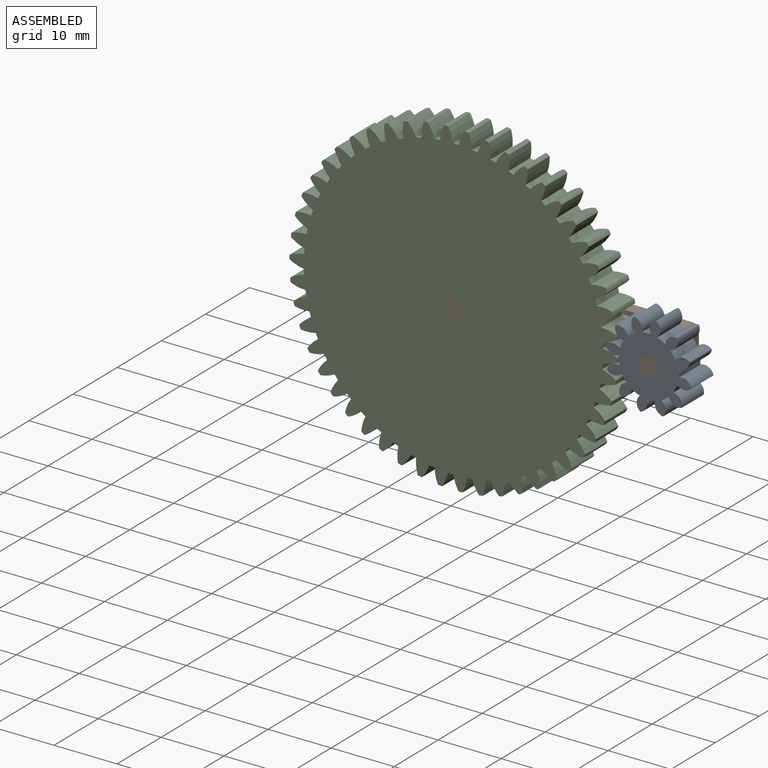
[diagram: assembled view]
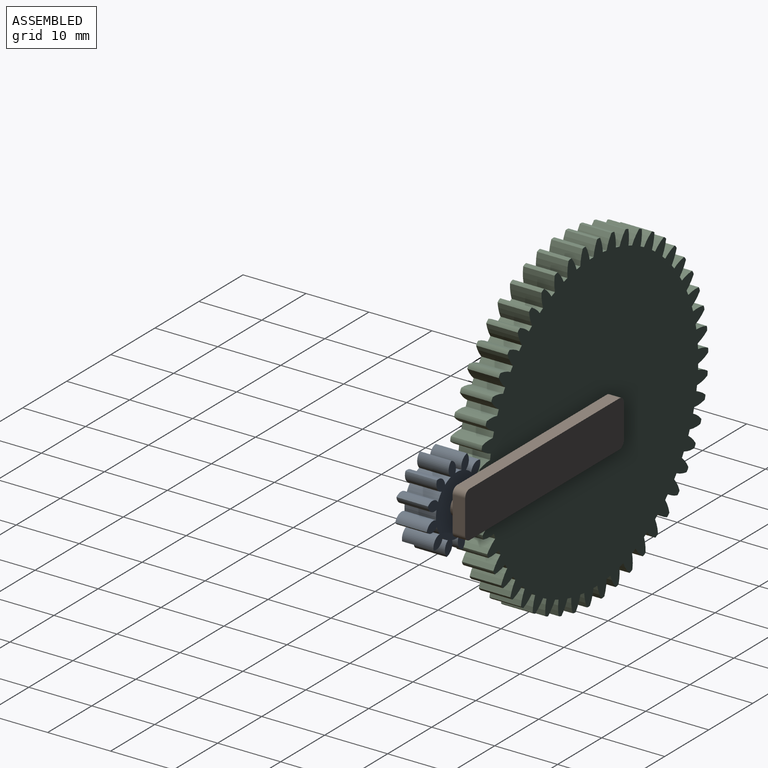
[diagram: assembled view, second angle]
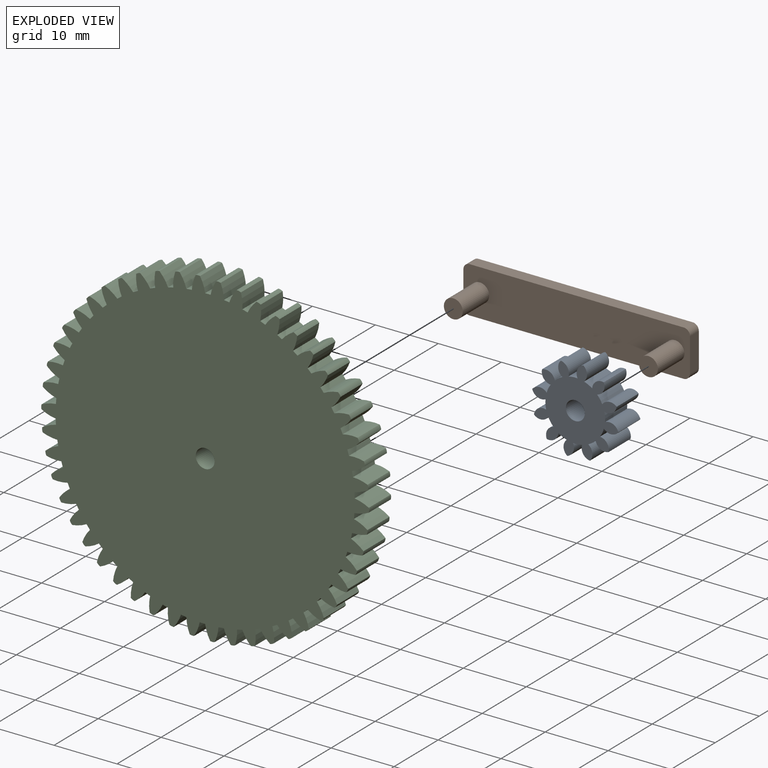
[diagram: exploded view]
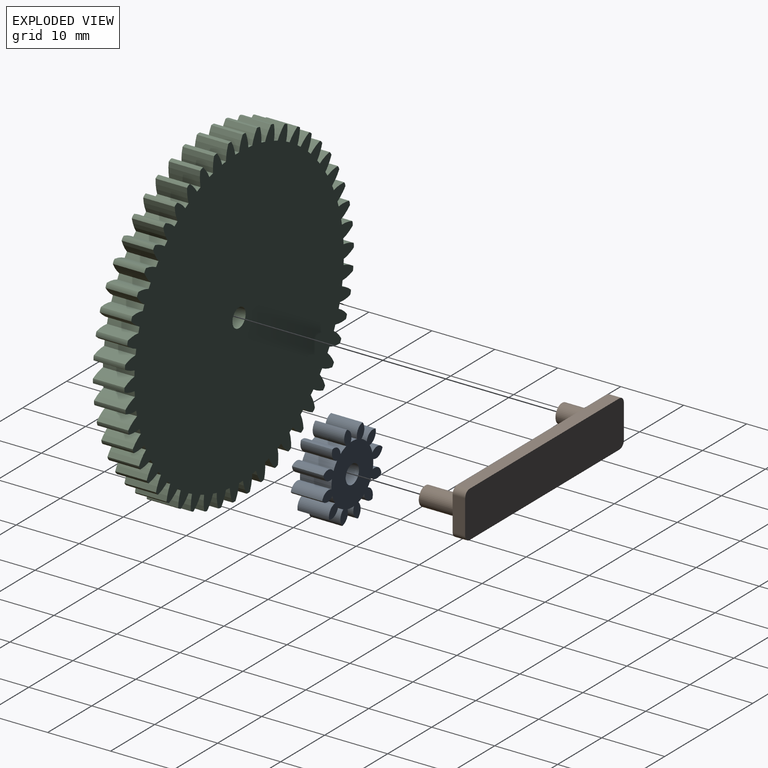
[diagram: exploded view, second angle]
ASSEMBLY  parts=3 mates=2
PART A: 39 faces, bbox 13.8x5x13.8 mm
  f0: cylinder r=4.75mm len=5mm, axis (0,1,0), area 7.3mm2, adj f1,f36,f37,f38
  f1: cylinder r=1.5mm len=5mm, axis (0,1,0), area 13.1mm2, adj f0,f2,f37,f38
  f2: cylinder r=1.5mm len=5mm, axis (0,1,0), area 13.1mm2, adj f1,f3,f37,f38
  f3: cylinder r=4.75mm len=5mm, axis (0,1,0), area 7.3mm2, adj f2,f4,f37,f38
  f4: cylinder r=1.5mm len=5mm, axis (0,1,0), area 13.1mm2, adj f3,f5,f37,f38
  f5: cylinder r=1.5mm len=5mm, axis (0,1,0), area 13.1mm2, adj f4,f6,f37,f38
  f6: cylinder r=4.75mm len=5mm, axis (0,1,0), area 7.3mm2, adj f5,f7,f37,f38
  f7: cylinder r=1.5mm len=5mm, axis (0,1,0), area 13.1mm2, adj f6,f8,f37,f38
  f8: cylinder r=1.5mm len=5mm, axis (0,1,0), area 13.1mm2, adj f7,f9,f37,f38
  f9: cylinder r=4.75mm len=5mm, axis (0,1,0), area 7.3mm2, adj f8,f10,f37,f38
  f10: cylinder r=1.5mm len=5mm, axis (0,1,0), area 13.1mm2, adj f9,f11,f37,f38
  f11: cylinder r=1.5mm len=5mm, axis (0,1,0), area 13.1mm2, adj f10,f12,f37,f38
  f12: cylinder r=4.75mm len=5mm, axis (0,1,0), area 7.3mm2, adj f11,f13,f37,f38
  f13: cylinder r=1.5mm len=5mm, axis (0,1,0), area 13.1mm2, adj f12,f14,f37,f38
  f14: cylinder r=1.5mm len=5mm, axis (0,1,0), area 13.1mm2, adj f13,f15,f37,f38
  f15: cylinder r=4.75mm len=5mm, axis (0,1,0), area 7.3mm2, adj f14,f16,f37,f38
  f16: cylinder r=1.5mm len=5mm, axis (0,1,0), area 13.1mm2, adj f15,f17,f37,f38
  f17: cylinder r=1.5mm len=5mm, axis (0,1,0), area 13.1mm2, adj f16,f18,f37,f38
  f18: cylinder r=4.75mm len=5mm, axis (0,1,0), area 7.3mm2, adj f17,f19,f37,f38
  f19: cylinder r=1.5mm len=5mm, axis (0,1,0), area 13.1mm2, adj f18,f20,f37,f38
  f20: cylinder r=1.5mm len=5mm, axis (0,1,0), area 13.1mm2, adj f19,f21,f37,f38
  f21: cylinder r=4.75mm len=5mm, axis (0,1,0), area 7.3mm2, adj f20,f22,f37,f38
  f22: cylinder r=1.5mm len=5mm, axis (0,1,0), area 13.1mm2, adj f21,f23,f37,f38
  f23: cylinder r=1.5mm len=5mm, axis (0,1,0), area 13.1mm2, adj f22,f24,f37,f38
  f24: cylinder r=4.75mm len=5mm, axis (0,1,0), area 7.3mm2, adj f23,f25,f37,f38
  f25: cylinder r=1.5mm len=5mm, axis (0,1,0), area 13.1mm2, adj f24,f26,f37,f38
  f26: cylinder r=1.5mm len=5mm, axis (0,1,0), area 13.1mm2, adj f25,f27,f37,f38
  f27: cylinder r=4.75mm len=5mm, axis (0,1,0), area 7.3mm2, adj f26,f28,f37,f38
  f28: cylinder r=1.5mm len=5mm, axis (0,1,0), area 13.1mm2, adj f27,f29,f37,f38
  f29: cylinder r=1.5mm len=5mm, axis (0,1,0), area 13.1mm2, adj f28,f30,f37,f38
  f30: cylinder r=4.75mm len=5mm, axis (0,1,0), area 7.3mm2, adj f29,f31,f37,f38
  f31: cylinder r=1.5mm len=5mm, axis (0,1,0), area 13.1mm2, adj f30,f32,f37,f38
  f32: cylinder r=1.5mm len=5mm, axis (0,1,0), area 13.1mm2, adj f31,f33,f37,f38
  f33: cylinder r=4.75mm len=5mm, axis (0,1,0), area 7.3mm2, adj f32,f34,f37,f38
  f34: cylinder r=1.5mm len=5mm, axis (0,1,0), area 13.1mm2, adj f33,f36,f37,f38
  f35: cylinder r=1.5mm len=5mm, axis (0,1,0), area 47.1mm2, adj f37,f38
  f36: cylinder r=1.5mm len=5mm, axis (0,1,0), area 13.1mm2, adj f0,f34,f37,f38
  f37: plane 13.8x13.8mm, normal (0,-1,0), area 97.9mm2, adj f0,f1,f2,f3,f4,f5,f6,f7
  f38: plane 13.8x13.8mm, normal (0,1,0), area 97.9mm2, adj f0,f1,f2,f3,f4,f5,f6,f7
PART B: 14 faces, bbox 36x8x7.4 mm
  f0: plane 5.36x2mm, normal (1,0,0), area 10.7mm2, adj f4,f5,f10,f13
  f1: plane 34x2mm, normal (0,0,1), area 68mm2, adj f4,f5,f10,f11
  f2: plane 5.36x2mm, normal (-1,0,0), area 10.7mm2, adj f4,f5,f11,f12
  f3: plane 34x2mm, normal (0,0,-1), area 68mm2, adj f4,f5,f12,f13
  f4: plane 36x7.36mm, normal (0,-1,0), area 250.1mm2, adj f0,f1,f2,f3,f6,f8,f10,f11
  f5: plane 36x7.36mm, normal (0,1,0), area 264.2mm2, adj f0,f1,f2,f3,f10,f11,f12,f13
  f6: cylinder r=1.5mm len=6mm, axis (0,1,0), area 56.5mm2, adj f4,f7
  f7: plane 3x3mm, normal (0,-1,0), area 7.1mm2, adj f6
  f8: cylinder r=1.5mm len=6mm, axis (0,1,0), area 56.5mm2, adj f4,f9
  f9: plane 3x3mm, normal (0,-1,0), area 7.1mm2, adj f8
  f10: cylinder r=1mm len=2mm, axis (0,-1,0), area 3.1mm2, adj f0,f1,f4,f5
  f11: cylinder r=1mm len=2mm, axis (0,1,0), area 3.1mm2, adj f1,f2,f4,f5
  f12: cylinder r=1mm len=2mm, axis (0,-1,0), area 3.1mm2, adj f2,f3,f4,f5
  f13: cylinder r=1mm len=2mm, axis (0,1,0), area 3.1mm2, adj f0,f3,f4,f5
PART C: 203 faces, bbox 52.1x5x52.1 mm
  f0: cylinder r=6.25mm len=5mm, axis (0,1,0), area 12mm2, adj f1,f199,f201,f202
  f1: cylinder r=23.75mm len=5mm, axis (0,1,0), area 4.3mm2, adj f0,f2,f201,f202
  f2: cylinder r=6.25mm len=5mm, axis (0,1,0), area 12mm2, adj f1,f3,f201,f202
  f3: cylinder r=1.37mm len=5mm, axis (0,1,0), area 3.6mm2, adj f2,f4,f201,f202
  f4: cylinder r=6.25mm len=5mm, axis (0,1,0), area 12mm2, adj f3,f5,f201,f202
  f5: cylinder r=23.75mm len=5mm, axis (0,1,0), area 4.3mm2, adj f4,f6,f201,f202
  f6: cylinder r=6.25mm len=5mm, axis (0,1,0), area 12mm2, adj f5,f7,f201,f202
  f7: cylinder r=1.37mm len=5mm, axis (0,1,0), area 3.6mm2, adj f6,f8,f201,f202
  f8: cylinder r=6.25mm len=5mm, axis (0,1,0), area 12mm2, adj f7,f9,f201,f202
  f9: cylinder r=23.75mm len=5mm, axis (0,1,0), area 4.3mm2, adj f8,f10,f201,f202
  f10: cylinder r=6.25mm len=5mm, axis (0,1,0), area 12mm2, adj f9,f11,f201,f202
  f11: cylinder r=1.37mm len=5mm, axis (0,1,0), area 3.6mm2, adj f10,f12,f201,f202
  f12: cylinder r=6.25mm len=5mm, axis (0,1,0), area 12mm2, adj f11,f13,f201,f202
  f13: cylinder r=23.75mm len=5mm, axis (0,1,0), area 4.3mm2, adj f12,f14,f201,f202
  f14: cylinder r=6.25mm len=5mm, axis (0,1,0), area 12mm2, adj f13,f15,f201,f202
  f15: cylinder r=1.37mm len=5mm, axis (0,1,0), area 3.6mm2, adj f14,f16,f201,f202
  f16: cylinder r=6.25mm len=5mm, axis (0,1,0), area 12mm2, adj f15,f17,f201,f202
  f17: cylinder r=23.75mm len=5mm, axis (0,1,0), area 4.3mm2, adj f16,f18,f201,f202
  f18: cylinder r=6.25mm len=5mm, axis (0,1,0), area 12mm2, adj f17,f19,f201,f202
  f19: cylinder r=1.37mm len=5mm, axis (0,1,0), area 3.6mm2, adj f18,f20,f201,f202
  f20: cylinder r=6.25mm len=5mm, axis (0,1,0), area 12mm2, adj f19,f21,f201,f202
  f21: cylinder r=23.75mm len=5mm, axis (0,1,0), area 4.3mm2, adj f20,f22,f201,f202
  f22: cylinder r=6.25mm len=5mm, axis (0,1,0), area 12mm2, adj f21,f23,f201,f202
  f23: cylinder r=1.37mm len=5mm, axis (0,1,0), area 3.6mm2, adj f22,f24,f201,f202
  f24: cylinder r=6.25mm len=5mm, axis (0,1,0), area 12mm2, adj f23,f25,f201,f202
  f25: cylinder r=23.75mm len=5mm, axis (0,1,0), area 4.3mm2, adj f24,f26,f201,f202
  f26: cylinder r=6.25mm len=5mm, axis (0,1,0), area 12mm2, adj f25,f27,f201,f202
  f27: cylinder r=1.37mm len=5mm, axis (0,1,0), area 3.6mm2, adj f26,f28,f201,f202
  f28: cylinder r=6.25mm len=5mm, axis (0,1,0), area 12mm2, adj f27,f29,f201,f202
  f29: cylinder r=23.75mm len=5mm, axis (0,1,0), area 4.3mm2, adj f28,f30,f201,f202
  f30: cylinder r=6.25mm len=5mm, axis (0,1,0), area 12mm2, adj f29,f31,f201,f202
  f31: cylinder r=1.37mm len=5mm, axis (0,1,0), area 3.6mm2, adj f30,f32,f201,f202
  f32: cylinder r=6.25mm len=5mm, axis (0,1,0), area 12mm2, adj f31,f33,f201,f202
  f33: cylinder r=23.75mm len=5mm, axis (0,1,0), area 4.3mm2, adj f32,f34,f201,f202
  f34: cylinder r=6.25mm len=5mm, axis (0,1,0), area 12mm2, adj f33,f35,f201,f202
  f35: cylinder r=1.37mm len=5mm, axis (0,1,0), area 3.6mm2, adj f34,f36,f201,f202
  f36: cylinder r=6.25mm len=5mm, axis (0,1,0), area 12mm2, adj f35,f37,f201,f202
  f37: cylinder r=23.75mm len=5mm, axis (0,1,0), area 4.3mm2, adj f36,f38,f201,f202
  f38: cylinder r=6.25mm len=5mm, axis (0,1,0), area 12mm2, adj f37,f39,f201,f202
  f39: cylinder r=1.37mm len=5mm, axis (0,1,0), area 3.6mm2, adj f38,f40,f201,f202
  f40: cylinder r=6.25mm len=5mm, axis (0,1,0), area 12mm2, adj f39,f41,f201,f202
  f41: cylinder r=23.75mm len=5mm, axis (0,1,0), area 4.3mm2, adj f40,f42,f201,f202
  f42: cylinder r=6.25mm len=5mm, axis (0,1,0), area 12mm2, adj f41,f43,f201,f202
  f43: cylinder r=1.37mm len=5mm, axis (0,1,0), area 3.6mm2, adj f42,f44,f201,f202
  f44: cylinder r=6.25mm len=5mm, axis (0,1,0), area 12mm2, adj f43,f45,f201,f202
  f45: cylinder r=23.75mm len=5mm, axis (0,1,0), area 4.3mm2, adj f44,f46,f201,f202
  f46: cylinder r=6.25mm len=5mm, axis (0,1,0), area 12mm2, adj f45,f47,f201,f202
  f47: cylinder r=1.37mm len=5mm, axis (0,1,0), area 3.6mm2, adj f46,f48,f201,f202
  f48: cylinder r=6.25mm len=5mm, axis (0,1,0), area 12mm2, adj f47,f49,f201,f202
  f49: cylinder r=23.75mm len=5mm, axis (0,1,0), area 4.3mm2, adj f48,f50,f201,f202
  f50: cylinder r=6.25mm len=5mm, axis (0,1,0), area 12mm2, adj f49,f51,f201,f202
  f51: cylinder r=1.37mm len=5mm, axis (0,1,0), area 3.6mm2, adj f50,f52,f201,f202
  f52: cylinder r=6.25mm len=5mm, axis (0,1,0), area 12mm2, adj f51,f53,f201,f202
  f53: cylinder r=23.75mm len=5mm, axis (0,1,0), area 4.3mm2, adj f52,f54,f201,f202
  f54: cylinder r=6.25mm len=5mm, axis (0,1,0), area 12mm2, adj f53,f55,f201,f202
  f55: cylinder r=1.37mm len=5mm, axis (0,1,0), area 3.6mm2, adj f54,f56,f201,f202
  f56: cylinder r=6.25mm len=5mm, axis (0,1,0), area 12mm2, adj f55,f57,f201,f202
  f57: cylinder r=23.75mm len=5mm, axis (0,1,0), area 4.3mm2, adj f56,f58,f201,f202
  f58: cylinder r=6.25mm len=5mm, axis (0,1,0), area 12mm2, adj f57,f59,f201,f202
  f59: cylinder r=1.37mm len=5mm, axis (0,1,0), area 3.6mm2, adj f58,f60,f201,f202
  f60: cylinder r=6.25mm len=5mm, axis (0,1,0), area 12mm2, adj f59,f61,f201,f202
  f61: cylinder r=23.75mm len=5mm, axis (0,1,0), area 4.3mm2, adj f60,f62,f201,f202
  f62: cylinder r=6.25mm len=5mm, axis (0,1,0), area 12mm2, adj f61,f63,f201,f202
  f63: cylinder r=1.37mm len=5mm, axis (0,1,0), area 3.6mm2, adj f62,f64,f201,f202
  f64: cylinder r=6.25mm len=5mm, axis (0,1,0), area 12mm2, adj f63,f65,f201,f202
  f65: cylinder r=23.75mm len=5mm, axis (0,1,0), area 4.3mm2, adj f64,f66,f201,f202
  f66: cylinder r=6.25mm len=5mm, axis (0,1,0), area 12mm2, adj f65,f67,f201,f202
  f67: cylinder r=1.37mm len=5mm, axis (0,1,0), area 3.6mm2, adj f66,f68,f201,f202
  f68: cylinder r=6.25mm len=5mm, axis (0,1,0), area 12mm2, adj f67,f69,f201,f202
  f69: cylinder r=23.75mm len=5mm, axis (0,1,0), area 4.3mm2, adj f68,f70,f201,f202
  f70: cylinder r=6.25mm len=5mm, axis (0,1,0), area 12mm2, adj f69,f71,f201,f202
  f71: cylinder r=1.37mm len=5mm, axis (0,1,0), area 3.6mm2, adj f70,f72,f201,f202
  f72: cylinder r=6.25mm len=5mm, axis (0,1,0), area 12mm2, adj f71,f73,f201,f202
  f73: cylinder r=23.75mm len=5mm, axis (0,1,0), area 4.3mm2, adj f72,f74,f201,f202
  f74: cylinder r=6.25mm len=5mm, axis (0,1,0), area 12mm2, adj f73,f75,f201,f202
  f75: cylinder r=1.37mm len=5mm, axis (0,1,0), area 3.6mm2, adj f74,f76,f201,f202
  f76: cylinder r=6.25mm len=5mm, axis (0,1,0), area 12mm2, adj f75,f77,f201,f202
  f77: cylinder r=23.75mm len=5mm, axis (0,1,0), area 4.3mm2, adj f76,f78,f201,f202
  f78: cylinder r=6.25mm len=5mm, axis (0,1,0), area 12mm2, adj f77,f79,f201,f202
  f79: cylinder r=1.37mm len=5mm, axis (0,1,0), area 3.6mm2, adj f78,f80,f201,f202
  f80: cylinder r=6.25mm len=5mm, axis (0,1,0), area 12mm2, adj f79,f81,f201,f202
  f81: cylinder r=23.75mm len=5mm, axis (0,1,0), area 4.3mm2, adj f80,f82,f201,f202
  f82: cylinder r=6.25mm len=5mm, axis (0,1,0), area 12mm2, adj f81,f83,f201,f202
  f83: cylinder r=1.37mm len=5mm, axis (0,1,0), area 3.6mm2, adj f82,f84,f201,f202
  f84: cylinder r=6.25mm len=5mm, axis (0,1,0), area 12mm2, adj f83,f85,f201,f202
  f85: cylinder r=23.75mm len=5mm, axis (0,1,0), area 4.3mm2, adj f84,f86,f201,f202
  f86: cylinder r=6.25mm len=5mm, axis (0,1,0), area 12mm2, adj f85,f87,f201,f202
  f87: cylinder r=1.37mm len=5mm, axis (0,1,0), area 3.6mm2, adj f86,f88,f201,f202
  f88: cylinder r=6.25mm len=5mm, axis (0,1,0), area 12mm2, adj f87,f89,f201,f202
  f89: cylinder r=23.75mm len=5mm, axis (0,1,0), area 4.3mm2, adj f88,f90,f201,f202
  f90: cylinder r=6.25mm len=5mm, axis (0,1,0), area 12mm2, adj f89,f91,f201,f202
  f91: cylinder r=1.37mm len=5mm, axis (0,1,0), area 3.6mm2, adj f90,f92,f201,f202
  f92: cylinder r=6.25mm len=5mm, axis (0,1,0), area 12mm2, adj f91,f93,f201,f202
  f93: cylinder r=23.75mm len=5mm, axis (0,1,0), area 4.3mm2, adj f92,f94,f201,f202
  f94: cylinder r=6.25mm len=5mm, axis (0,1,0), area 12mm2, adj f93,f95,f201,f202
  f95: cylinder r=1.37mm len=5mm, axis (0,1,0), area 3.6mm2, adj f94,f96,f201,f202
  f96: cylinder r=6.25mm len=5mm, axis (0,1,0), area 12mm2, adj f95,f97,f201,f202
  f97: cylinder r=23.75mm len=5mm, axis (0,1,0), area 4.3mm2, adj f96,f98,f201,f202
  f98: cylinder r=6.25mm len=5mm, axis (0,1,0), area 12mm2, adj f97,f99,f201,f202
  f99: cylinder r=1.37mm len=5mm, axis (0,1,0), area 3.6mm2, adj f98,f100,f201,f202
  f100: cylinder r=6.25mm len=5mm, axis (0,1,0), area 12mm2, adj f99,f101,f201,f202
  f101: cylinder r=23.75mm len=5mm, axis (0,1,0), area 4.3mm2, adj f100,f102,f201,f202
  f102: cylinder r=6.25mm len=5mm, axis (0,1,0), area 12mm2, adj f101,f103,f201,f202
  f103: cylinder r=1.37mm len=5mm, axis (0,1,0), area 3.6mm2, adj f102,f104,f201,f202
  f104: cylinder r=6.25mm len=5mm, axis (0,1,0), area 12mm2, adj f103,f105,f201,f202
  f105: cylinder r=23.75mm len=5mm, axis (0,1,0), area 4.3mm2, adj f104,f106,f201,f202
  f106: cylinder r=6.25mm len=5mm, axis (0,1,0), area 12mm2, adj f105,f107,f201,f202
  f107: cylinder r=1.37mm len=5mm, axis (0,1,0), area 3.6mm2, adj f106,f108,f201,f202
  f108: cylinder r=6.25mm len=5mm, axis (0,1,0), area 12mm2, adj f107,f109,f201,f202
  f109: cylinder r=23.75mm len=5mm, axis (0,1,0), area 4.3mm2, adj f108,f110,f201,f202
  f110: cylinder r=6.25mm len=5mm, axis (0,1,0), area 12mm2, adj f109,f111,f201,f202
  f111: cylinder r=1.37mm len=5mm, axis (0,1,0), area 3.6mm2, adj f110,f112,f201,f202
  f112: cylinder r=6.25mm len=5mm, axis (0,1,0), area 12mm2, adj f111,f113,f201,f202
  f113: cylinder r=23.75mm len=5mm, axis (0,1,0), area 4.3mm2, adj f112,f114,f201,f202
  f114: cylinder r=6.25mm len=5mm, axis (0,1,0), area 12mm2, adj f113,f115,f201,f202
  f115: cylinder r=1.37mm len=5mm, axis (0,1,0), area 3.6mm2, adj f114,f116,f201,f202
  f116: cylinder r=6.25mm len=5mm, axis (0,1,0), area 12mm2, adj f115,f117,f201,f202
  f117: cylinder r=23.75mm len=5mm, axis (0,1,0), area 4.3mm2, adj f116,f118,f201,f202
  f118: cylinder r=6.25mm len=5mm, axis (0,1,0), area 12mm2, adj f117,f119,f201,f202
  f119: cylinder r=1.37mm len=5mm, axis (0,1,0), area 3.6mm2, adj f118,f120,f201,f202
  f120: cylinder r=6.25mm len=5mm, axis (0,1,0), area 12mm2, adj f119,f121,f201,f202
  f121: cylinder r=23.75mm len=5mm, axis (0,1,0), area 4.3mm2, adj f120,f122,f201,f202
  f122: cylinder r=6.25mm len=5mm, axis (0,1,0), area 12mm2, adj f121,f123,f201,f202
  f123: cylinder r=1.37mm len=5mm, axis (0,1,0), area 3.6mm2, adj f122,f124,f201,f202
  f124: cylinder r=6.25mm len=5mm, axis (0,1,0), area 12mm2, adj f123,f125,f201,f202
  f125: cylinder r=23.75mm len=5mm, axis (0,1,0), area 4.3mm2, adj f124,f126,f201,f202
  f126: cylinder r=6.25mm len=5mm, axis (0,1,0), area 12mm2, adj f125,f127,f201,f202
  f127: cylinder r=1.37mm len=5mm, axis (0,1,0), area 3.6mm2, adj f126,f128,f201,f202
  f128: cylinder r=6.25mm len=5mm, axis (0,1,0), area 12mm2, adj f127,f129,f201,f202
  f129: cylinder r=23.75mm len=5mm, axis (0,1,0), area 4.3mm2, adj f128,f130,f201,f202
  f130: cylinder r=6.25mm len=5mm, axis (0,1,0), area 12mm2, adj f129,f131,f201,f202
  f131: cylinder r=1.37mm len=5mm, axis (0,1,0), area 3.6mm2, adj f130,f132,f201,f202
  f132: cylinder r=6.25mm len=5mm, axis (0,1,0), area 12mm2, adj f131,f133,f201,f202
  f133: cylinder r=23.75mm len=5mm, axis (0,1,0), area 4.3mm2, adj f132,f134,f201,f202
  f134: cylinder r=6.25mm len=5mm, axis (0,1,0), area 12mm2, adj f133,f135,f201,f202
  f135: cylinder r=1.37mm len=5mm, axis (0,1,0), area 3.6mm2, adj f134,f136,f201,f202
  f136: cylinder r=6.25mm len=5mm, axis (0,1,0), area 12mm2, adj f135,f137,f201,f202
  f137: cylinder r=23.75mm len=5mm, axis (0,1,0), area 4.3mm2, adj f136,f138,f201,f202
  f138: cylinder r=6.25mm len=5mm, axis (0,1,0), area 12mm2, adj f137,f139,f201,f202
  f139: cylinder r=1.37mm len=5mm, axis (0,1,0), area 3.6mm2, adj f138,f140,f201,f202
  f140: cylinder r=6.25mm len=5mm, axis (0,1,0), area 12mm2, adj f139,f141,f201,f202
  f141: cylinder r=23.75mm len=5mm, axis (0,1,0), area 4.3mm2, adj f140,f142,f201,f202
  f142: cylinder r=6.25mm len=5mm, axis (0,1,0), area 12mm2, adj f141,f143,f201,f202
  f143: cylinder r=1.37mm len=5mm, axis (0,1,0), area 3.6mm2, adj f142,f144,f201,f202
  f144: cylinder r=6.25mm len=5mm, axis (0,1,0), area 12mm2, adj f143,f145,f201,f202
  f145: cylinder r=23.75mm len=5mm, axis (0,1,0), area 4.3mm2, adj f144,f146,f201,f202
  f146: cylinder r=6.25mm len=5mm, axis (0,1,0), area 12mm2, adj f145,f147,f201,f202
  f147: cylinder r=1.37mm len=5mm, axis (0,1,0), area 3.6mm2, adj f146,f148,f201,f202
  f148: cylinder r=6.25mm len=5mm, axis (0,1,0), area 12mm2, adj f147,f149,f201,f202
  f149: cylinder r=23.75mm len=5mm, axis (0,1,0), area 4.3mm2, adj f148,f150,f201,f202
  f150: cylinder r=6.25mm len=5mm, axis (0,1,0), area 12mm2, adj f149,f151,f201,f202
  f151: cylinder r=1.37mm len=5mm, axis (0,1,0), area 3.6mm2, adj f150,f152,f201,f202
  f152: cylinder r=6.25mm len=5mm, axis (0,1,0), area 12mm2, adj f151,f153,f201,f202
  f153: cylinder r=23.75mm len=5mm, axis (0,1,0), area 4.3mm2, adj f152,f154,f201,f202
  f154: cylinder r=6.25mm len=5mm, axis (0,1,0), area 12mm2, adj f153,f155,f201,f202
  f155: cylinder r=1.37mm len=5mm, axis (0,1,0), area 3.6mm2, adj f154,f156,f201,f202
  f156: cylinder r=6.25mm len=5mm, axis (0,1,0), area 12mm2, adj f155,f157,f201,f202
  f157: cylinder r=23.75mm len=5mm, axis (0,1,0), area 4.3mm2, adj f156,f158,f201,f202
  f158: cylinder r=6.25mm len=5mm, axis (0,1,0), area 12mm2, adj f157,f159,f201,f202
  f159: cylinder r=1.37mm len=5mm, axis (0,1,0), area 3.6mm2, adj f158,f160,f201,f202
  f160: cylinder r=6.25mm len=5mm, axis (0,1,0), area 12mm2, adj f159,f161,f201,f202
  f161: cylinder r=23.75mm len=5mm, axis (0,1,0), area 4.3mm2, adj f160,f162,f201,f202
  f162: cylinder r=6.25mm len=5mm, axis (0,1,0), area 12mm2, adj f161,f163,f201,f202
  f163: cylinder r=1.37mm len=5mm, axis (0,1,0), area 3.6mm2, adj f162,f164,f201,f202
  f164: cylinder r=6.25mm len=5mm, axis (0,1,0), area 12mm2, adj f163,f165,f201,f202
  f165: cylinder r=23.75mm len=5mm, axis (0,1,0), area 4.3mm2, adj f164,f166,f201,f202
  f166: cylinder r=6.25mm len=5mm, axis (0,1,0), area 12mm2, adj f165,f167,f201,f202
  f167: cylinder r=1.37mm len=5mm, axis (0,1,0), area 3.6mm2, adj f166,f168,f201,f202
  f168: cylinder r=6.25mm len=5mm, axis (0,1,0), area 12mm2, adj f167,f169,f201,f202
  f169: cylinder r=23.75mm len=5mm, axis (0,1,0), area 4.3mm2, adj f168,f170,f201,f202
  f170: cylinder r=6.25mm len=5mm, axis (0,1,0), area 12mm2, adj f169,f171,f201,f202
  f171: cylinder r=1.37mm len=5mm, axis (0,1,0), area 3.6mm2, adj f170,f172,f201,f202
  f172: cylinder r=6.25mm len=5mm, axis (0,1,0), area 12mm2, adj f171,f173,f201,f202
  f173: cylinder r=23.75mm len=5mm, axis (0,1,0), area 4.3mm2, adj f172,f174,f201,f202
  f174: cylinder r=6.25mm len=5mm, axis (0,1,0), area 12mm2, adj f173,f175,f201,f202
  f175: cylinder r=1.37mm len=5mm, axis (0,1,0), area 3.6mm2, adj f174,f176,f201,f202
  f176: cylinder r=6.25mm len=5mm, axis (0,1,0), area 12mm2, adj f175,f177,f201,f202
  f177: cylinder r=23.75mm len=5mm, axis (0,1,0), area 4.3mm2, adj f176,f178,f201,f202
  f178: cylinder r=6.25mm len=5mm, axis (0,1,0), area 12mm2, adj f177,f179,f201,f202
  f179: cylinder r=1.37mm len=5mm, axis (0,1,0), area 3.6mm2, adj f178,f180,f201,f202
  f180: cylinder r=6.25mm len=5mm, axis (0,1,0), area 12mm2, adj f179,f181,f201,f202
  f181: cylinder r=23.75mm len=5mm, axis (0,1,0), area 4.3mm2, adj f180,f182,f201,f202
  f182: cylinder r=6.25mm len=5mm, axis (0,1,0), area 12mm2, adj f181,f183,f201,f202
  f183: cylinder r=1.37mm len=5mm, axis (0,1,0), area 3.6mm2, adj f182,f184,f201,f202
  f184: cylinder r=6.25mm len=5mm, axis (0,1,0), area 12mm2, adj f183,f185,f201,f202
  f185: cylinder r=23.75mm len=5mm, axis (0,1,0), area 4.3mm2, adj f184,f186,f201,f202
  f186: cylinder r=6.25mm len=5mm, axis (0,1,0), area 12mm2, adj f185,f187,f201,f202
  f187: cylinder r=1.37mm len=5mm, axis (0,1,0), area 3.6mm2, adj f186,f188,f201,f202
  f188: cylinder r=6.25mm len=5mm, axis (0,1,0), area 12mm2, adj f187,f189,f201,f202
  f189: cylinder r=23.75mm len=5mm, axis (0,1,0), area 4.3mm2, adj f188,f190,f201,f202
  f190: cylinder r=6.25mm len=5mm, axis (0,1,0), area 12mm2, adj f189,f191,f201,f202
  f191: cylinder r=1.37mm len=5mm, axis (0,1,0), area 3.6mm2, adj f190,f192,f201,f202
  f192: cylinder r=6.25mm len=5mm, axis (0,1,0), area 12mm2, adj f191,f193,f201,f202
  f193: cylinder r=23.75mm len=5mm, axis (0,1,0), area 4.3mm2, adj f192,f194,f201,f202
  f194: cylinder r=6.25mm len=5mm, axis (0,1,0), area 12mm2, adj f193,f195,f201,f202
  f195: cylinder r=1.37mm len=5mm, axis (0,1,0), area 3.6mm2, adj f194,f196,f201,f202
  f196: cylinder r=6.25mm len=5mm, axis (0,1,0), area 12mm2, adj f195,f197,f201,f202
  f197: cylinder r=23.75mm len=5mm, axis (0,1,0), area 4.3mm2, adj f196,f198,f201,f202
  f198: cylinder r=6.25mm len=5mm, axis (0,1,0), area 12mm2, adj f197,f199,f201,f202
  f199: cylinder r=1.37mm len=5mm, axis (0,1,0), area 3.6mm2, adj f0,f198,f201,f202
  f200: cylinder r=1.5mm len=5mm, axis (0,1,0), area 47.1mm2, adj f201,f202
  f201: plane 52.06x52.06mm, normal (0,-1,0), area 1942.8mm2, adj f0,f1,f2,f3,f4,f5,f6,f7
  f202: plane 52.06x52.06mm, normal (0,1,0), area 1942.8mm2, adj f0,f1,f2,f3,f4,f5,f6,f7
PLACE A rot(axis=(0,1,0),18.1deg) t=(20,-3,0)mm
PLACE B at identity fixed
PLACE C rot(axis=(0,-1,0),173.6deg) t=(-11,-3,0)mm
MATE revolute C.f200 <-> B.f6  axis (0,-1,0) through (-11,-8,0)mm
MATE revolute A.f33 <-> B.f8  axis (0,-1,0) through (20,-8,0)mm
